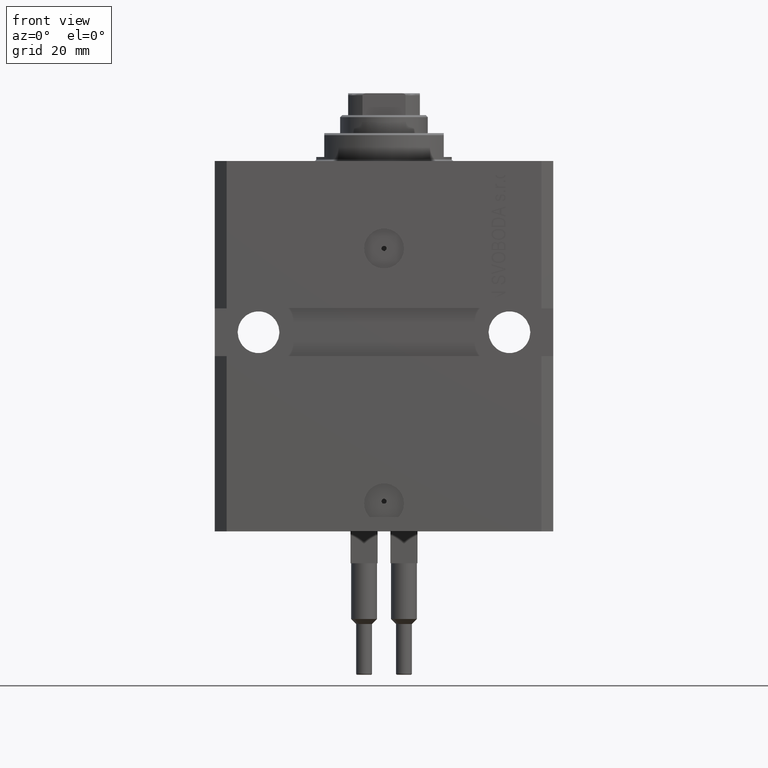
[diagram: clean part render]
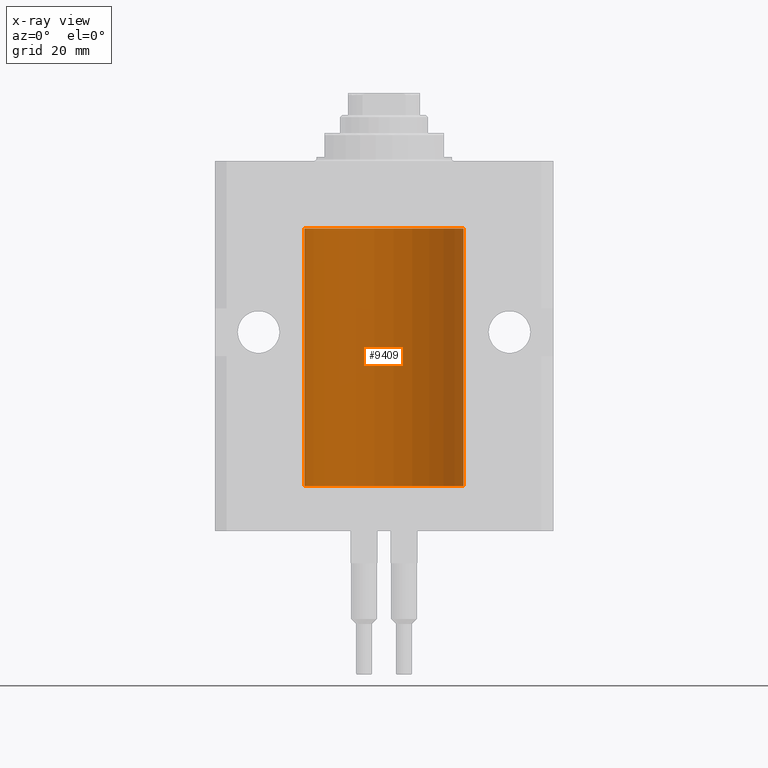
[diagram: x-ray — body ghosted, one internal face saturated and labeled with its STEP entity id]
A machine part, front view, then the same camera in x-ray: the body is ghosted and one INTERNAL B-rep face — a face not visible from any outside direction — is saturated and labeled: STEP entity #9409.
In plain terms, the highlighted cylindrical surface (partial cylindrical patch) has radius 20 mm, axis along (0, 0, 1).
Its self-contained STEP definition (entity closure, byte-faithful):
#12 = AXIS2_PLACEMENT_3D ( 'NONE', #9676, #24771, #28961 ) ;
#620 = CARTESIAN_POINT ( 'NONE',  ( -19.99023380173166231, 0.6249420416828462832, -23.83670793056396064 ) ) ;
#868 = CARTESIAN_POINT ( 'NONE',  ( -19.99256581701871482, 0.5573276956902001311, -23.67348565770948809 ) ) ;
#1769 = CYLINDRICAL_SURFACE ( 'NONE', #16752, 20.00000000000000000 ) ;
#1773 = CARTESIAN_POINT ( 'NONE',  ( -20.00000000000000000, -1.124177324826063808E-14, -78.37500000000000000 ) ) ;
#2018 = FACE_OUTER_BOUND ( 'NONE', #10220, .T. ) ;
#2079 = CARTESIAN_POINT ( 'NONE',  ( 19.99023198964909298, 0.6250000000081574747, -78.99999999999911893 ) ) ;
#2270 = DIRECTION ( 'NONE',  ( 1.000000000000000000, 0.000000000000000000, 0.000000000000000000 ) ) ;
#2596 = EDGE_CURVE ( 'NONE', #45579, #42049, #45142, .T. ) ;
#2741 = DIRECTION ( 'NONE',  ( 1.000000000000000000, 0.000000000000000000, 0.000000000000000000 ) ) ;
#2988 = VERTEX_POINT ( 'NONE', #1773 ) ;
#3832 = VERTEX_POINT ( 'NONE', #13673 ) ;
#4098 = CARTESIAN_POINT ( 'NONE',  ( -20.00000000000010303, 3.580159278407742946E-13, -24.62500000000332889 ) ) ;
#4421 = EDGE_CURVE ( 'NONE', #37276, #46118, #43195, .T. ) ;
#4564 = CARTESIAN_POINT ( 'NONE',  ( 19.99947351343144675, 0.1636818329565319363, -24.60872855715643936 ) ) ;
#4639 = VERTEX_POINT ( 'NONE', #18010 ) ;
#4699 = B_SPLINE_CURVE_WITH_KNOTS ( 'NONE', 3,
 ( #27324, #27084, #4564, #19186, #8042, #19427, #34246, #23138 ),
 .UNSPECIFIED., .F., .F.,
 ( 4, 2, 2, 4 ),
 ( 1.013370767385449693E-18, 0.0002443247335684061339, 0.0004886494671368111836, 0.0009772989342736214998 ),
 .UNSPECIFIED. ) ;
#4951 = CARTESIAN_POINT ( 'NONE',  ( -19.99023018003212471, 0.6250578794725522025, -79.16284809704971792 ) ) ;
#5439 = CARTESIAN_POINT ( 'NONE',  ( -20.00000000000010303, 3.580159286679549072E-13, -79.62500000000332534 ) ) ;
#5727 = DIRECTION ( 'NONE',  ( -0.000000000000000000, -0.000000000000000000, 1.000000000000000000 ) ) ;
#6334 = CARTESIAN_POINT ( 'NONE',  ( -20.00000000000000000, 2.449293598294706513E-15, -81.59999999999999432 ) ) ;
#6686 = EDGE_CURVE ( 'NONE', #31951, #26901, #21140, .T. ) ;
#7609 = ORIENTED_EDGE ( 'NONE', *, *, #10110, .T. ) ;
#7818 = CARTESIAN_POINT ( 'NONE',  ( -19.99947377218718714, 0.1636439183262877461, -23.39126364004656011 ) ) ;
#7951 = CARTESIAN_POINT ( 'NONE',  ( -20.00000000000000355, 0.1631688615953343080, -79.62499999999984368 ) ) ;
#8042 = CARTESIAN_POINT ( 'NONE',  ( 19.99638788807192924, 0.3844440352705356112, -24.49948058986480603 ) ) ;
#8367 = CARTESIAN_POINT ( 'NONE',  ( 19.99253733128256272, 0.5586305947778931191, -23.67476036735258305 ) ) ;
#8506 = ORIENTED_EDGE ( 'NONE', *, *, #44434, .F. ) ;
#8577 = CARTESIAN_POINT ( 'NONE',  ( 20.00000000000010303, 3.555666352936568165E-13, -78.37499999999667466 ) ) ;
#8733 = ORIENTED_EDGE ( 'NONE', *, *, #31731, .F. ) ;
#9217 = CARTESIAN_POINT ( 'NONE',  ( -20.00000000000000000, 2.449293598294706513E-15, -81.59999999999999432 ) ) ;
#9409 = ADVANCED_FACE ( 'NONE', ( #2018 ), #1769, .F. ) ;
#9676 = CARTESIAN_POINT ( 'NONE',  ( 0.000000000000000000, 0.000000000000000000, -17.00000000000000000 ) ) ;
#9762 = CARTESIAN_POINT ( 'NONE',  ( 20.00000000000000000, 0.000000000000000000, -81.59999999999999432 ) ) ;
#9775 = B_SPLINE_CURVE_WITH_KNOTS ( 'NONE', 3,
 ( #30072, #46137, #7818, #26133, #15730, #868, #620, #22426, #45172, #11296, #45654, #4098 ),
 .UNSPECIFIED., .F., .F.,
 ( 4, 2, 2, 2, 2, 4 ),
 ( 5.848927291235706941E-19, 0.0002442693137305304075, 0.0004885386274610601645, 0.0009770772549221123059, 0.001465615882383164339, 0.001954154509844215938 ),
 .UNSPECIFIED. ) ;
#10064 = VECTOR ( 'NONE', #46082, 1000.000000000000000 ) ;
#10110 = EDGE_CURVE ( 'NONE', #26723, #40619, #9775, .T. ) ;
#10220 = EDGE_LOOP ( 'NONE', ( #8733, #8506, #42022, #45992, #39979, #42816, #19421, #21164, #27907, #11401, #17531, #7609, #26338, #21483 ) ) ;
#10875 = CARTESIAN_POINT ( 'NONE',  ( -20.00000000000000000, -2.867584836844214272E-15, -23.37500000000000000 ) ) ;
#11296 = CARTESIAN_POINT ( 'NONE',  ( -19.99769349528941120, 0.3253804398728645242, -24.55855820727680339 ) ) ;
#11401 = ORIENTED_EDGE ( 'NONE', *, *, #42398, .T. ) ;
#11669 = CARTESIAN_POINT ( 'NONE',  ( -20.00000000000000000, -1.124177324826063808E-14, -78.37500000000000000 ) ) ;
#11949 = EDGE_CURVE ( 'NONE', #46118, #43533, #44854, .T. ) ;
#12292 = CARTESIAN_POINT ( 'NONE',  ( 19.99253733128256627, 0.5586305947779004466, -78.67476036735259015 ) ) ;
#12738 = CARTESIAN_POINT ( 'NONE',  ( 20.00000000000000000, -4.058908006348821872E-15, -79.62500000000000000 ) ) ;
#13024 = CARTESIAN_POINT ( 'NONE',  ( 19.99023198964909298, 0.6250000000081574747, -78.99999999999911893 ) ) ;
#13227 = CARTESIAN_POINT ( 'NONE',  ( 19.99638788807192924, 0.3844440352705359998, -79.49948058986481669 ) ) ;
#13673 = CARTESIAN_POINT ( 'NONE',  ( -20.00000000000000000, 2.449293598294706513E-15, -17.00000000000000000 ) ) ;
#14078 = EDGE_CURVE ( 'NONE', #2988, #4639, #20623, .T. ) ;
#14935 = VECTOR ( 'NONE', #43828, 1000.000000000000000 ) ;
#15730 = CARTESIAN_POINT ( 'NONE',  ( -19.99638934703457593, 0.3843678041337688644, -23.50046362978100944 ) ) ;
#16039 = CARTESIAN_POINT ( 'NONE',  ( 20.00000000000010303, 3.555666340528858977E-13, -23.37499999999667111 ) ) ;
#16134 = CARTESIAN_POINT ( 'NONE',  ( 20.00000000000000000, 0.000000000000000000, -17.00000000000000000 ) ) ;
#16752 = AXIS2_PLACEMENT_3D ( 'NONE', #16880, #17633, #2270 ) ;
#16880 = CARTESIAN_POINT ( 'NONE',  ( 0.000000000000000000, 0.000000000000000000, -81.59999999999999432 ) ) ;
#17234 = CARTESIAN_POINT ( 'NONE',  ( 20.00000000000000000, 0.000000000000000000, -81.59999999999999432 ) ) ;
#17531 = ORIENTED_EDGE ( 'NONE', *, *, #22789, .F. ) ;
#17633 = DIRECTION ( 'NONE',  ( -0.000000000000000000, -0.000000000000000000, 1.000000000000000000 ) ) ;
#18010 = CARTESIAN_POINT ( 'NONE',  ( -20.00000000000010303, 3.580159286679549072E-13, -79.62500000000332534 ) ) ;
#18099 = CARTESIAN_POINT ( 'NONE',  ( 20.00000000000000000, -4.058908006348821872E-15, -79.62500000000000000 ) ) ;
#19186 = CARTESIAN_POINT ( 'NONE',  ( 19.99766100389832957, 0.3150982863324730543, -24.54594438241278453 ) ) ;
#19282 = VECTOR ( 'NONE', #5727, 1000.000000000000000 ) ;
#19339 = CARTESIAN_POINT ( 'NONE',  ( -19.99999999999999289, 0.08259581631026131909, -78.37499999999998579 ) ) ;
#19421 = ORIENTED_EDGE ( 'NONE', *, *, #39122, .T. ) ;
#19427 = CARTESIAN_POINT ( 'NONE',  ( 19.99256353007439202, 0.5574106582031151946, -24.32639035180115172 ) ) ;
#19567 = CARTESIAN_POINT ( 'NONE',  ( 20.00000000000010303, 3.555666352936568165E-13, -78.37499999999667466 ) ) ;
#20623 = B_SPLINE_CURVE_WITH_KNOTS ( 'NONE', 3,
 ( #11669, #19339, #31169, #46275, #41821, #26756, #45791, #4951, #42541, #23765, #7951, #5439 ),
 .UNSPECIFIED., .F., .F.,
 ( 4, 2, 2, 2, 2, 4 ),
 ( 1.522880481566060999E-18, 0.0002442693137305179392, 0.0004885386274610343605, 0.0009770772549220966934, 0.001465615882383158918, 0.001954154509844221576 ),
 .UNSPECIFIED. ) ;
#21140 = LINE ( 'NONE', #9762, #30857 ) ;
#21164 = ORIENTED_EDGE ( 'NONE', *, *, #4421, .T. ) ;
#21483 = ORIENTED_EDGE ( 'NONE', *, *, #14078, .T. ) ;
#22358 = DIRECTION ( 'NONE',  ( -0.000000000000000000, -0.000000000000000000, 1.000000000000000000 ) ) ;
#22426 = CARTESIAN_POINT ( 'NONE',  ( -19.99023018003212471, 0.6250578794725500931, -24.16284809704970371 ) ) ;
#22789 = EDGE_CURVE ( 'NONE', #26723, #3832, #29370, .T. ) ;
#23138 = CARTESIAN_POINT ( 'NONE',  ( 19.99023198964909298, 0.6250000000081508134, -23.99999999999910472 ) ) ;
#23765 = CARTESIAN_POINT ( 'NONE',  ( -19.99769349528941831, 0.3253804398728615266, -79.55855820727680339 ) ) ;
#24049 = LINE ( 'NONE', #28489, #19282 ) ;
#24157 = CARTESIAN_POINT ( 'NONE',  ( 19.99999999999999645, 0.1631318418333158327, -78.37500000000015632 ) ) ;
#24191 = CARTESIAN_POINT ( 'NONE',  ( 20.00000000000000000, 1.042771508482559297E-15, -24.62500000000000000 ) ) ;
#24598 = CIRCLE ( 'NONE', #41941, 20.00000000000000000 ) ;
#24771 = DIRECTION ( 'NONE',  ( 0.000000000000000000, 0.000000000000000000, 1.000000000000000000 ) ) ;
#24854 = DIRECTION ( 'NONE',  ( -0.000000000000000000, -0.000000000000000000, 1.000000000000000000 ) ) ;
#24969 = EDGE_CURVE ( 'NONE', #2988, #40619, #24049, .T. ) ;
#25825 = CARTESIAN_POINT ( 'NONE',  ( 20.00000000000000000, 0.000000000000000000, -81.59999999999999432 ) ) ;
#26133 = CARTESIAN_POINT ( 'NONE',  ( -19.99766197842594906, 0.3150331617867667688, -23.45402070102505476 ) ) ;
#26338 = ORIENTED_EDGE ( 'NONE', *, *, #24969, .F. ) ;
#26723 = VERTEX_POINT ( 'NONE', #10875 ) ;
#26756 = CARTESIAN_POINT ( 'NONE',  ( -19.99256581701871838, 0.5573276956901996870, -78.67348565770949165 ) ) ;
#26901 = VERTEX_POINT ( 'NONE', #24191 ) ;
#27084 = CARTESIAN_POINT ( 'NONE',  ( 19.99999999999999645, 0.08261455565447869964, -24.62499999999998579 ) ) ;
#27165 = CARTESIAN_POINT ( 'NONE',  ( 19.99023198964935588, 0.6249999999995746736, -23.83696384779806721 ) ) ;
#27324 = CARTESIAN_POINT ( 'NONE',  ( 20.00000000000000000, 1.042771508482559297E-15, -24.62500000000000000 ) ) ;
#27907 = ORIENTED_EDGE ( 'NONE', *, *, #11949, .T. ) ;
#28300 = CARTESIAN_POINT ( 'NONE',  ( 19.99256353007439202, 0.5574106582031174151, -79.32639035180115172 ) ) ;
#28489 = CARTESIAN_POINT ( 'NONE',  ( -20.00000000000000000, 2.449293598294706513E-15, -81.59999999999999432 ) ) ;
#28633 = DIRECTION ( 'NONE',  ( -0.000000000000000000, -0.000000000000000000, 1.000000000000000000 ) ) ;
#28961 = DIRECTION ( 'NONE',  ( 1.000000000000000000, 0.000000000000000000, 0.000000000000000000 ) ) ;
#29370 = LINE ( 'NONE', #40009, #35216 ) ;
#29443 = DIRECTION ( 'NONE',  ( 0.000000000000000000, 0.000000000000000000, 1.000000000000000000 ) ) ;
#30072 = CARTESIAN_POINT ( 'NONE',  ( -20.00000000000000000, -2.867584836844214272E-15, -23.37500000000000000 ) ) ;
#30144 = CARTESIAN_POINT ( 'NONE',  ( 19.99769474220010679, 0.3253030616682399678, -23.44140633897632142 ) ) ;
#30826 = CIRCLE ( 'NONE', #12, 20.00000000000000000 ) ;
#30857 = VECTOR ( 'NONE', #24854, 1000.000000000000000 ) ;
#30984 = LINE ( 'NONE', #9217, #10064 ) ;
#31169 = CARTESIAN_POINT ( 'NONE',  ( -19.99947377218718003, 0.1636439183262797525, -78.39126364004653169 ) ) ;
#31731 = EDGE_CURVE ( 'NONE', #47417, #4639, #30984, .T. ) ;
#31951 = VERTEX_POINT ( 'NONE', #19567 ) ;
#32331 = B_SPLINE_CURVE_WITH_KNOTS ( 'NONE', 3,
 ( #13024, #42937, #12292, #42444, #24157, #8577 ),
 .UNSPECIFIED., .F., .F.,
 ( 4, 2, 4 ),
 ( 0.0009772989342736221503, 0.001465726722058849005, 0.001954154509844075859 ),
 .UNSPECIFIED. ) ;
#32506 = CARTESIAN_POINT ( 'NONE',  ( 19.99999999999999645, 0.08261455565447825555, -79.62499999999997158 ) ) ;
#33383 = CARTESIAN_POINT ( 'NONE',  ( 0.000000000000000000, 0.000000000000000000, -81.59999999999999432 ) ) ;
#34246 = CARTESIAN_POINT ( 'NONE',  ( 19.99023198964933812, 0.6250000000002681189, -24.16311014829328130 ) ) ;
#34328 = CARTESIAN_POINT ( 'NONE',  ( 19.99023198964909298, 0.6250000000081508134, -23.99999999999910472 ) ) ;
#35216 = VECTOR ( 'NONE', #28633, 1000.000000000000000 ) ;
#35407 = CARTESIAN_POINT ( 'NONE',  ( -20.00000000000010303, 3.580159278407742946E-13, -24.62500000000332889 ) ) ;
#36386 = VERTEX_POINT ( 'NONE', #17234 ) ;
#37276 = VERTEX_POINT ( 'NONE', #41670 ) ;
#38383 = CARTESIAN_POINT ( 'NONE',  ( 20.00000000000010303, 3.555666340528858977E-13, -23.37499999999667111 ) ) ;
#39122 = EDGE_CURVE ( 'NONE', #26901, #37276, #4699, .T. ) ;
#39679 = CARTESIAN_POINT ( 'NONE',  ( 19.99023198964934167, 0.6250000000002757794, -79.16311014829327064 ) ) ;
#39690 = EDGE_CURVE ( 'NONE', #36386, #45579, #46804, .T. ) ;
#39979 = ORIENTED_EDGE ( 'NONE', *, *, #48201, .T. ) ;
#40009 = CARTESIAN_POINT ( 'NONE',  ( -20.00000000000000000, 2.449293598294706513E-15, -81.59999999999999432 ) ) ;
#40460 = CARTESIAN_POINT ( 'NONE',  ( 19.99023198964909298, 0.6250000000081574747, -78.99999999999911893 ) ) ;
#40619 = VERTEX_POINT ( 'NONE', #35407 ) ;
#41670 = CARTESIAN_POINT ( 'NONE',  ( 19.99023198964909298, 0.6250000000081508134, -23.99999999999910472 ) ) ;
#41754 = CARTESIAN_POINT ( 'NONE',  ( 19.99999999999999645, 0.1631318418333146114, -23.37500000000016698 ) ) ;
#41821 = CARTESIAN_POINT ( 'NONE',  ( -19.99638934703457238, 0.3843678041337651452, -78.50046362978099523 ) ) ;
#41941 = AXIS2_PLACEMENT_3D ( 'NONE', #33383, #29443, #2741 ) ;
#42022 = ORIENTED_EDGE ( 'NONE', *, *, #39690, .T. ) ;
#42049 = VERTEX_POINT ( 'NONE', #40460 ) ;
#42398 = EDGE_CURVE ( 'NONE', #43533, #3832, #30826, .T. ) ;
#42444 = CARTESIAN_POINT ( 'NONE',  ( 19.99769474220011034, 0.3253030616682413001, -78.44140633897630721 ) ) ;
#42541 = CARTESIAN_POINT ( 'NONE',  ( -19.99253506710754991, 0.5587120480776742726, -79.32511620830248944 ) ) ;
#42816 = ORIENTED_EDGE ( 'NONE', *, *, #6686, .T. ) ;
#42895 = CARTESIAN_POINT ( 'NONE',  ( 19.99947351343144319, 0.1636818329565372654, -79.60872855715646779 ) ) ;
#42937 = CARTESIAN_POINT ( 'NONE',  ( 19.99023198964936299, 0.6249999999995806688, -78.83696384779808852 ) ) ;
#43195 = B_SPLINE_CURVE_WITH_KNOTS ( 'NONE', 3,
 ( #34328, #27165, #8367, #30144, #41754, #16039 ),
 .UNSPECIFIED., .F., .F.,
 ( 4, 2, 4 ),
 ( 0.0009772989342736214998, 0.001465726722058845102, 0.001954154509844068920 ),
 .UNSPECIFIED. ) ;
#43320 = CARTESIAN_POINT ( 'NONE',  ( 20.00000000000000000, 0.000000000000000000, -81.59999999999999432 ) ) ;
#43533 = VERTEX_POINT ( 'NONE', #16134 ) ;
#43828 = DIRECTION ( 'NONE',  ( -0.000000000000000000, -0.000000000000000000, 1.000000000000000000 ) ) ;
#44434 = EDGE_CURVE ( 'NONE', #36386, #47417, #24598, .T. ) ;
#44854 = LINE ( 'NONE', #25825, #46857 ) ;
#45142 = B_SPLINE_CURVE_WITH_KNOTS ( 'NONE', 3,
 ( #12738, #32506, #42895, #47118, #13227, #28300, #39679, #2079 ),
 .UNSPECIFIED., .F., .F.,
 ( 4, 2, 2, 4 ),
 ( 3.944467879762244826E-18, 0.0002443247335684012008, 0.0004886494671367983900, 0.0009772989342736221503 ),
 .UNSPECIFIED. ) ;
#45172 = CARTESIAN_POINT ( 'NONE',  ( -19.99253506710754991, 0.5587120480776751608, -24.32511620830248589 ) ) ;
#45579 = VERTEX_POINT ( 'NONE', #18099 ) ;
#45654 = CARTESIAN_POINT ( 'NONE',  ( -20.00000000000000000, 0.1631688615953320320, -24.62499999999985434 ) ) ;
#45791 = CARTESIAN_POINT ( 'NONE',  ( -19.99023380173166231, 0.6249420416828449509, -78.83670793056396064 ) ) ;
#45992 = ORIENTED_EDGE ( 'NONE', *, *, #2596, .T. ) ;
#46082 = DIRECTION ( 'NONE',  ( -0.000000000000000000, -0.000000000000000000, 1.000000000000000000 ) ) ;
#46118 = VERTEX_POINT ( 'NONE', #38383 ) ;
#46137 = CARTESIAN_POINT ( 'NONE',  ( -19.99999999999999645, 0.08259581631026780002, -23.37500000000000000 ) ) ;
#46275 = CARTESIAN_POINT ( 'NONE',  ( -19.99766197842594551, 0.3150331617867603295, -78.45402070102504410 ) ) ;
#46804 = LINE ( 'NONE', #43320, #14935 ) ;
#46857 = VECTOR ( 'NONE', #22358, 1000.000000000000000 ) ;
#47118 = CARTESIAN_POINT ( 'NONE',  ( 19.99766100389833312, 0.3150982863324784944, -79.54594438241281296 ) ) ;
#47417 = VERTEX_POINT ( 'NONE', #6334 ) ;
#48201 = EDGE_CURVE ( 'NONE', #42049, #31951, #32331, .T. ) ;